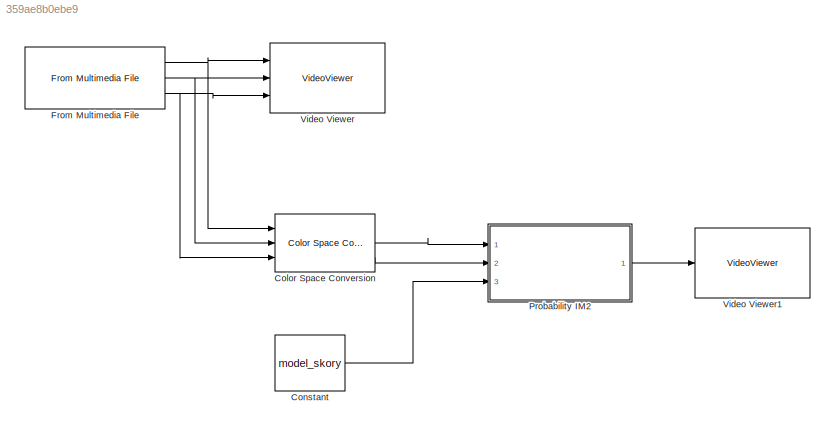
MODEL slx_359ae8b0ebe9
KIND model
CONFIG AbsTol = auto
CONFIG EnableMultiTasking = off
CONFIG FixedStep = auto
CONFIG MaxStep = auto
CONFIG MinStep = auto
CONFIG RelTol = 1e-3
CONFIG SampleTimeConstraint = Unconstrained
CONFIG Solver = FixedStepDiscrete
CONFIG SolverName = FixedStepDiscrete
CONFIG StartTime = 0.0
CONFIG StopTime = inf
BLOCK [Reference] Color Space Conversion  REF=visionconversions/Color Space
 Conversion
  Ports = [3, 3]
  SourceBlock = visionconversions/Color Space\n Conversion
  SourceProductBaseCode = VP
  SourceProductName = Computer Vision System Toolbox
  SourceType = Color Space Conversion
BLOCK [Constant] Constant
  Value = model_skory
BLOCK [Reference] From Multimedia File  REF=dspvision/From Multimedia File
  Ports = [0, 3]
  SourceBlock = dspvision/From Multimedia File
  SourceProductBaseCode = VP
  SourceProductName = Computer Vision System Toolbox
  SourceType = From Multimedia File
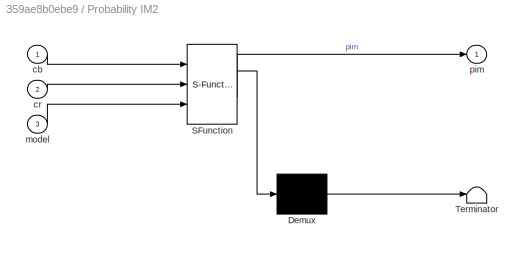
BLOCK [SubSystem] Probability IM2
  ErrorFcn = Stateflow.Translate.translate
  PermitHierarchicalResolution = ExplicitOnly
  Ports = [3, 1]
  RequestExecContextInheritance = off
  SFBlockType = MATLAB Function
  TreatAsAtomicUnit = on
BLOCK [Demux] Probability IM2/ Demux 
  Outputs = 1
  Ports = [1, 1]
BLOCK [S-Function] Probability IM2/ SFunction 
  EnableBusSupport = on
  FunctionName = sf_sfun
  PortCounts = [3 2]
  Ports = [3, 2]
  SFcnIsStateOwnerBlock = off
  SFunctionDeploymentMode = off
  Tag = Stateflow S-Function video_model 2
BLOCK [Terminator] Probability IM2/ Terminator 
BLOCK [Inport] Probability IM2/cb
  IconDisplay = Port number
BLOCK [Inport] Probability IM2/cr
  IconDisplay = Port number
  Port = 2
BLOCK [Inport] Probability IM2/model
  IconDisplay = Port number
  Port = 3
BLOCK [Outport] Probability IM2/pim
  IconDisplay = Port number
BLOCK [VideoViewer] Video Viewer
  FigPos = [534.6 606.8 417.6 304]
  Ports = [3]
  ScopeSpecificationString = vipscopes.VideoViewerScopeCfg('CurrentConfiguration', extmgr.ConfigurationSet(extmgr.Configuration('Core','General UI',true),extmgr.Configuration('Core','Source UI',true),extmgr.Configuration('Sources','WiredSimulink',true),extmgr.Configuration('Sources','SimulinkEvent',false),extmgr.Configuration('Sources','Simulink',false),extmgr.Configuration('Sources','SPTool',false),extmgr.Configuration('Sour...<+1284ch>
  imagePorts = separate color signals
BLOCK [VideoViewer] Video Viewer1
  FigPos = [559 583 418 304]
  Ports = [1]
  ScopeSpecificationString = vipscopes.VideoViewerScopeCfg('CurrentConfiguration', extmgr.ConfigurationSet(extmgr.Configuration('Core','General UI',true),extmgr.Configuration('Core','Source UI',true),extmgr.Configuration('Sources','WiredSimulink',true),extmgr.Configuration('Visuals','Video',true),extmgr.Configuration('Tools','Image Navigation Tools',true),extmgr.Configuration('Tools','Image Tool',true),extmgr.Configuration('T...<+75ch>
LINE Color Space Conversion:2 -> Probability IM2:1
LINE Color Space Conversion:3 -> Probability IM2:2
LINE Constant:1 -> Probability IM2:3
NET From Multimedia File:1 -> Color Space Conversion:1, Video Viewer:1
NET From Multimedia File:2 -> Color Space Conversion:2, Video Viewer:2
NET From Multimedia File:3 -> Color Space Conversion:3, Video Viewer:3
LINE Probability IM2:1 -> Video Viewer1:1
note: NET lines group one-source signal fan-out (src -> all destinations, sorted); 1:1 wires keep LINE
CHART Probability IM2 states=1 transitions=1
  STATE_LABEL 'eML_blk_kernel()'
  STATE_LABEL 'SCRIPT:\nfunction pim = probabilityIM2(cb,cr,model)\n%#codegen\n% Wyznaczenie tablicy prawdopodobienstwa dla obrazu wg zadanego modelu koloru skory.\n%\n% INPUT:\n% > im - testowy obraz wejsciowy w formacie RGB\n% > model - model koloru skory (tablica [256*256])\n% OUTPUT:                                                                         \n% > skin_model - obraz prawdopodobienstwa\n%\n% DEPENDICIES:\n% ...<+263ch>'
